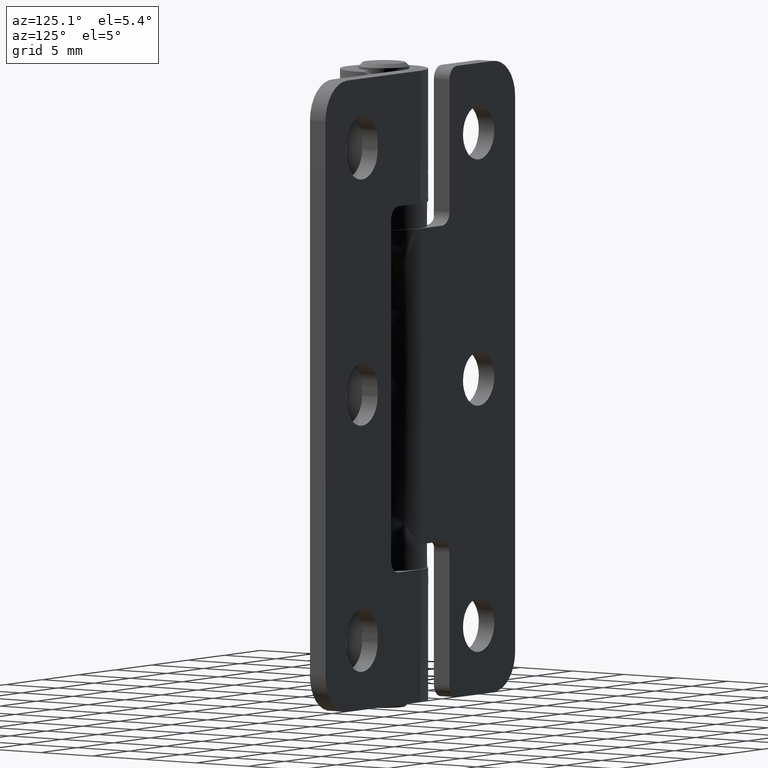
[diagram: clean part render]
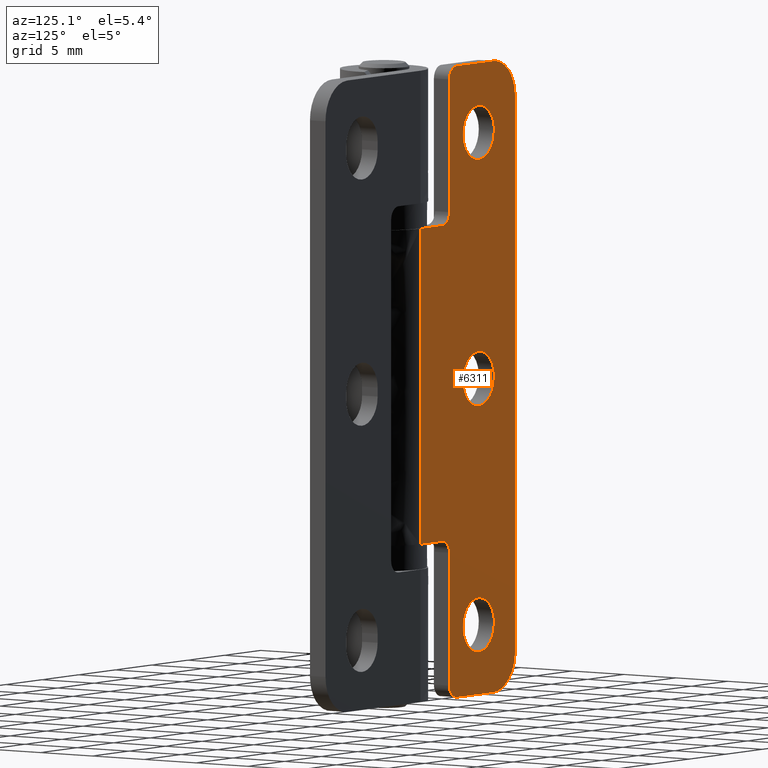
[diagram: same view with one face highlighted and labeled with its STEP entity id]
A machine part, auxiliary view. The second image highlights one B-rep face of the part: STEP entity #6311.
In plain terms, the highlighted face is a freeform B-spline surface patch.
Its self-contained STEP definition (entity closure, byte-faithful):
#5334=CARTESIAN_POINT('',(-6.547480998249361,3.500000000000000,42.914853580625248));
#5335=VERTEX_POINT('',#5334);
#5341=CARTESIAN_POINT('',(-7.999999419834744,3.500000000000000,42.350000000000080));
#5342=VERTEX_POINT('',#5341);
#5343=CARTESIAN_POINT('',(-7.999999419834744,3.500000000000000,42.350000000000080));
#5344=CARTESIAN_POINT('',(-7.767406874589605,3.499999999999999,42.349858491402422));
#5345=CARTESIAN_POINT('',(-7.368795473166668,3.499999999999995,42.415353014166342));
#5346=CARTESIAN_POINT('',(-6.884704316697647,3.500000000000017,42.643541333721167));
#5347=CARTESIAN_POINT('',(-6.645458157641640,3.499999999999964,42.825061790457482));
#5348=CARTESIAN_POINT('',(-6.547480998249361,3.500000000000000,42.914853580625248));
#5349=B_SPLINE_CURVE_WITH_KNOTS('',3,(#5343,#5344,#5345,#5346,#5347,#5348),.UNSPECIFIED.,.F.,.U.,(4,1,1,4),(0.000000014525932,0.697732234627679,1.196102206325336,1.594802945870812),.UNSPECIFIED.);
#5350=EDGE_CURVE('',#5342,#5335,#5349,.T.);
#5352=CARTESIAN_POINT('',(-10.150000000000571,3.500000000000000,44.500000000000000));
#5353=VERTEX_POINT('',#5352);
#5354=CARTESIAN_POINT('',(-10.150000000000571,3.500000000000000,44.500000000000000));
#5355=CARTESIAN_POINT('',(-10.150055773051379,3.499999999999996,44.315302432744282));
#5356=CARTESIAN_POINT('',(-10.114639841352419,3.500000000000006,44.042697401911212));
#5357=CARTESIAN_POINT('',(-9.970931550388389,3.499999999999997,43.607611629665939));
#5358=CARTESIAN_POINT('',(-9.746144331460341,3.500000000000002,43.204979693958997));
#5359=CARTESIAN_POINT('',(-9.395312526345833,3.499999999999997,42.841072481496930));
#5360=CARTESIAN_POINT('',(-8.967647133709340,3.500000000000010,42.559049246590007));
#5361=CARTESIAN_POINT('',(-8.510101202767007,3.499999999999994,42.388988853811000));
#5362=CARTESIAN_POINT('',(-8.158301811948354,3.500000000000002,42.349980596425631));
#5363=CARTESIAN_POINT('',(-7.999999419834744,3.500000000000000,42.350000000000080));
#5364=B_SPLINE_CURVE_WITH_KNOTS('',3,(#5354,#5355,#5356,#5357,#5358,#5359,#5360,#5361,#5362,#5363),.UNSPECIFIED.,.F.,.U.,(4,1,1,1,1,1,1,4),(0.000000070774472,0.554073890345666,0.817923411777211,1.372004260566749,1.926064710605263,2.321846378083893,2.902320829414840,3.377233620180323),.UNSPECIFIED.);
#5365=EDGE_CURVE('',#5353,#5342,#5364,.T.);
#5367=CARTESIAN_POINT('',(-9.452519001751778,3.500000000000000,46.085146419374752));
#5368=VERTEX_POINT('',#5367);
#5369=CARTESIAN_POINT('',(-9.452519001751778,3.500000000000000,46.085146419374752));
#5370=CARTESIAN_POINT('',(-9.555189599746273,3.500000000000000,45.991076605196021));
#5371=CARTESIAN_POINT('',(-9.767135431154935,3.499999999999999,45.755163426746698));
#5372=CARTESIAN_POINT('',(-9.968644591864527,3.500000000000002,45.396314175051501));
#5373=CARTESIAN_POINT('',(-10.113691434103901,3.499999999999995,44.964148594217733));
#5374=CARTESIAN_POINT('',(-10.150050406570310,3.500000000000006,44.685675616116903));
#5375=CARTESIAN_POINT('',(-10.150000000000571,3.500000000000000,44.500000000000000));
#5376=B_SPLINE_CURVE_WITH_KNOTS('',3,(#5369,#5370,#5371,#5372,#5373,#5374,#5375),.UNSPECIFIED.,.F.,.U.,(4,1,1,1,4),(0.000000019762542,0.417756446214311,0.946908171517592,1.225417655837289,1.782430076777035),.UNSPECIFIED.);
#5377=EDGE_CURVE('',#5368,#5353,#5376,.T.);
#5469=CARTESIAN_POINT('',(-8.000000580166384,3.500000000000000,46.649999999999928));
#5470=VERTEX_POINT('',#5469);
#5471=CARTESIAN_POINT('',(-8.000000580166384,3.500000000000000,46.649999999999928));
#5472=CARTESIAN_POINT('',(-8.215980074400923,3.500000000000004,46.650103902749777));
#5473=CARTESIAN_POINT('',(-8.514933657209006,3.499999999999996,46.604556520270293));
#5474=CARTESIAN_POINT('',(-9.013446289337567,3.500000000000008,46.417323831443618));
#5475=CARTESIAN_POINT('',(-9.281120690625532,3.499999999999995,46.242391172162861));
#5476=CARTESIAN_POINT('',(-9.452519001751778,3.500000000000000,46.085146419374752));
#5477=B_SPLINE_CURVE_WITH_KNOTS('',3,(#5471,#5472,#5473,#5474,#5475,#5476),.UNSPECIFIED.,.F.,.U.,(4,1,1,4),(0.000000014525087,0.647894897212068,0.897070725752961,1.594802945870829),.UNSPECIFIED.);
#5478=EDGE_CURVE('',#5470,#5368,#5477,.T.);
#5480=CARTESIAN_POINT('',(-5.850000000000571,3.500000000000000,44.500000000000000));
#5481=VERTEX_POINT('',#5480);
#5482=CARTESIAN_POINT('',(-5.850000000000571,3.500000000000000,44.500000000000000));
#5483=CARTESIAN_POINT('',(-5.849899817111045,3.499999999999998,44.719882875604910));
#5484=CARTESIAN_POINT('',(-5.901723887334307,3.500000000000009,45.054014706894790));
#5485=CARTESIAN_POINT('',(-6.101314111235702,3.499999999999980,45.544350395932071));
#5486=CARTESIAN_POINT('',(-6.367399049817189,3.500000000000039,45.932221539382738));
#5487=CARTESIAN_POINT('',(-6.738654148204640,3.499999999999967,46.260435927731322));
#5488=CARTESIAN_POINT('',(-7.084669576695245,3.500000000000054,46.456433038252612));
#5489=CARTESIAN_POINT('',(-7.498736792254086,3.499999999999963,46.607475845625302));
#5490=CARTESIAN_POINT('',(-7.797710558431114,3.500000000000021,46.650077286735332));
#5491=CARTESIAN_POINT('',(-8.000000580166384,3.500000000000000,46.649999999999928));
#5492=B_SPLINE_CURVE_WITH_KNOTS('',3,(#5482,#5483,#5484,#5485,#5486,#5487,#5488,#5489,#5490,#5491),.UNSPECIFIED.,.F.,.U.,(4,1,1,1,1,1,1,4),(0.000000070783852,0.659610932058368,1.002618282774338,1.583097111869757,2.057993631345186,2.480154645655665,2.770393240017392,3.377233620180324),.UNSPECIFIED.);
#5493=EDGE_CURVE('',#5481,#5470,#5492,.T.);
#5495=CARTESIAN_POINT('',(-6.547480998249361,3.500000000000000,42.914853580625248));
#5496=CARTESIAN_POINT('',(-6.444804024143672,3.500000000000008,43.008919818729588));
#5497=CARTESIAN_POINT('',(-6.251584723894773,3.499999999999997,43.224035567434960));
#5498=CARTESIAN_POINT('',(-6.043587700661606,3.500000000000000,43.578129931921112));
#5499=CARTESIAN_POINT('',(-5.889941685395240,3.499999999999984,44.008008572158559));
#5500=CARTESIAN_POINT('',(-5.849949874347880,3.500000000000029,44.314324369106700));
#5501=CARTESIAN_POINT('',(-5.850000000000571,3.500000000000000,44.500000000000000));
#5502=B_SPLINE_CURVE_WITH_KNOTS('',3,(#5495,#5496,#5497,#5498,#5499,#5500,#5501),.UNSPECIFIED.,.F.,.U.,(4,1,1,1,4),(0.000000019763336,0.417756446215442,0.863375057571481,1.225417655837923,1.782430076777035),.UNSPECIFIED.);
#5503=EDGE_CURVE('',#5335,#5481,#5502,.T.);
#5540=CARTESIAN_POINT('',(-6.547480998249362,3.500000000000000,23.414853580625248));
#5541=VERTEX_POINT('',#5540);
#5547=CARTESIAN_POINT('',(-7.999999419834742,3.500000000000000,22.850000000000080));
#5548=VERTEX_POINT('',#5547);
#5549=CARTESIAN_POINT('',(-7.999999419834742,3.500000000000000,22.850000000000080));
#5550=CARTESIAN_POINT('',(-7.742469771562931,3.499999999999994,22.849794988333930));
#5551=CARTESIAN_POINT('',(-7.343928399721301,3.500000000000007,22.922509281626532));
#5552=CARTESIAN_POINT('',(-6.864774604148334,3.499999999999994,23.158692799224919));
#5553=CARTESIAN_POINT('',(-6.645456575226999,3.500000000000003,23.325058084963239));
#5554=CARTESIAN_POINT('',(-6.547480998249362,3.500000000000000,23.414853580625248));
#5555=B_SPLINE_CURVE_WITH_KNOTS('',3,(#5549,#5550,#5551,#5552,#5553,#5554),.UNSPECIFIED.,.F.,.U.,(4,1,1,4),(0.000000014528783,0.772492419500053,1.196102206326229,1.594802945870783),.UNSPECIFIED.);
#5556=EDGE_CURVE('',#5548,#5541,#5555,.T.);
#5558=CARTESIAN_POINT('',(-10.150000000000571,3.500000000000000,25.0));
#5559=VERTEX_POINT('',#5558);
#5560=CARTESIAN_POINT('',(-10.150000000000571,3.500000000000000,25.0));
#5561=CARTESIAN_POINT('',(-10.150163172663150,3.500000000000005,24.753718408659012));
#5562=CARTESIAN_POINT('',(-10.084292570237990,3.499999999999984,24.375669300739538));
#5563=CARTESIAN_POINT('',(-9.853153662882130,3.500000000000020,23.879219588235252));
#5564=CARTESIAN_POINT('',(-9.565999482199043,3.499999999999983,23.496895918445901));
#5565=CARTESIAN_POINT('',(-9.216644591582467,3.500000000000010,23.210222167733889));
#5566=CARTESIAN_POINT('',(-8.843317442114715,3.500000000000004,23.010691791279559));
#5567=CARTESIAN_POINT('',(-8.457315476653829,3.499999999999978,22.883180254928270));
#5568=CARTESIAN_POINT('',(-8.158305914930233,3.500000000000008,22.849969897950970));
#5569=CARTESIAN_POINT('',(-7.999999419834742,3.500000000000000,22.850000000000080));
#5570=B_SPLINE_CURVE_WITH_KNOTS('',3,(#5560,#5561,#5562,#5563,#5564,#5565,#5566,#5567,#5568,#5569),.UNSPECIFIED.,.F.,.U.,(4,1,1,1,1,1,1,4),(0.000000070776671,0.738768618320917,1.134545766522398,1.635860561849311,2.163529635118663,2.480154645655291,2.902320829414719,3.377233620180324),.UNSPECIFIED.);
#5571=EDGE_CURVE('',#5559,#5548,#5570,.T.);
#5573=CARTESIAN_POINT('',(-9.452519001751776,3.500000000000000,26.585146419374759));
#5574=VERTEX_POINT('',#5573);
#5575=CARTESIAN_POINT('',(-9.452519001751776,3.500000000000000,26.585146419374759));
#5576=CARTESIAN_POINT('',(-9.616858962577680,3.499999999999996,26.434688819021460));
#5577=CARTESIAN_POINT('',(-9.892226136823799,3.500000000000007,26.089443115605871));
#5578=CARTESIAN_POINT('',(-10.109016289057390,3.500000000000004,25.529171565920560));
#5579=CARTESIAN_POINT('',(-10.150008268892631,3.499999999999989,25.157814797103189));
#5580=CARTESIAN_POINT('',(-10.150000000000571,3.500000000000000,25.0));
#5581=B_SPLINE_CURVE_WITH_KNOTS('',3,(#5575,#5576,#5577,#5578,#5579,#5580),.UNSPECIFIED.,.F.,.U.,(4,1,1,4),(0.000000019760663,0.668411610178747,1.308971474721767,1.782430076777045),.UNSPECIFIED.);
#5582=EDGE_CURVE('',#5574,#5559,#5581,.T.);
#5671=CARTESIAN_POINT('',(-8.000000580166386,3.500000000000000,27.149999999999920));
#5672=VERTEX_POINT('',#5671);
#5673=CARTESIAN_POINT('',(-8.000000580166386,3.500000000000000,27.149999999999920));
#5674=CARTESIAN_POINT('',(-8.174436558032021,3.499999999999997,27.150042933584189));
#5675=CARTESIAN_POINT('',(-8.456818083260128,3.500000000000001,27.115424625097258));
#5676=CARTESIAN_POINT('',(-8.963109978610090,3.499999999999997,26.948414114682869));
#5677=CARTESIAN_POINT('',(-9.268901415337247,3.500000000000003,26.753655446583160));
#5678=CARTESIAN_POINT('',(-9.452519001751776,3.500000000000000,26.585146419374759));
#5679=B_SPLINE_CURVE_WITH_KNOTS('',3,(#5673,#5674,#5675,#5676,#5677,#5678),.UNSPECIFIED.,.F.,.U.,(4,1,1,4),(0.000000014528775,0.523296669760107,0.847235019439931,1.594802945870792),.UNSPECIFIED.);
#5680=EDGE_CURVE('',#5672,#5574,#5679,.T.);
#5682=CARTESIAN_POINT('',(-5.850000000000571,3.500000000000000,25.0));
#5683=VERTEX_POINT('',#5682);
#5684=CARTESIAN_POINT('',(-5.850000000000571,3.500000000000000,25.0));
#5685=CARTESIAN_POINT('',(-5.849878164977052,3.499999999999990,25.219886248891410));
#5686=CARTESIAN_POINT('',(-5.905831931472353,3.500000000000028,25.580395812298811));
#5687=CARTESIAN_POINT('',(-6.104306215864047,3.499999999999957,26.043384481319471));
#5688=CARTESIAN_POINT('',(-6.354276569741900,3.500000000000024,26.407742009679549));
#5689=CARTESIAN_POINT('',(-6.668292567231429,3.500000000000008,26.706717126844008));
#5690=CARTESIAN_POINT('',(-6.990408322539293,3.499999999999988,26.907892411295080));
#5691=CARTESIAN_POINT('',(-7.419632405018526,3.500000000000016,27.091954553754121));
#5692=CARTESIAN_POINT('',(-7.753715595880802,3.499999999999995,27.150176888617050));
#5693=CARTESIAN_POINT('',(-8.000000580166386,3.500000000000000,27.149999999999920));
#5694=B_SPLINE_CURVE_WITH_KNOTS('',3,(#5684,#5685,#5686,#5687,#5688,#5689,#5690,#5691,#5692,#5693),.UNSPECIFIED.,.F.,.U.,(4,1,1,1,1,1,1,4),(0.000000070776481,0.659610932053901,1.081776822057209,1.503932842506968,1.978832330916146,2.374616182115610,2.638465729889269,3.377233620180317),.UNSPECIFIED.);
#5695=EDGE_CURVE('',#5683,#5672,#5694,.T.);
#5697=CARTESIAN_POINT('',(-6.547480998249362,3.500000000000000,23.414853580625248));
#5698=CARTESIAN_POINT('',(-6.417401554097920,3.499999999999999,23.533988406297521));
#5699=CARTESIAN_POINT('',(-6.235408780991116,3.500000000000014,23.747578207766178));
#5700=CARTESIAN_POINT('',(-6.030342358038158,3.499999999999986,24.112760756023981));
#5701=CARTESIAN_POINT('',(-5.889059082354995,3.500000000000013,24.507995985912920));
#5702=CARTESIAN_POINT('',(-5.849961253751760,3.499999999999995,24.823612073821881));
#5703=CARTESIAN_POINT('',(-5.850000000000571,3.500000000000000,25.0));
#5704=B_SPLINE_CURVE_WITH_KNOTS('',3,(#5697,#5698,#5699,#5700,#5701,#5702,#5703),.UNSPECIFIED.,.F.,.U.,(4,1,1,1,4),(0.000000019761450,0.529159849008198,0.835521925039079,1.253270247538596,1.782430076777043),.UNSPECIFIED.);
#5705=EDGE_CURVE('',#5541,#5683,#5704,.T.);
#5742=CARTESIAN_POINT('',(-6.547480998249363,3.500000000000000,3.914853580625245));
#5743=VERTEX_POINT('',#5742);
#5749=CARTESIAN_POINT('',(-7.999999419834744,3.500000000000000,3.350000000000078));
#5750=VERTEX_POINT('',#5749);
#5751=CARTESIAN_POINT('',(-7.999999419834744,3.500000000000000,3.350000000000078));
#5752=CARTESIAN_POINT('',(-7.767405801811472,3.500000000000001,3.349856405823140));
#5753=CARTESIAN_POINT('',(-7.368797903655705,3.500000000000000,3.415356422836027));
#5754=CARTESIAN_POINT('',(-6.884701895124139,3.500000000000007,3.643538546464983));
#5755=CARTESIAN_POINT('',(-6.645459895533636,3.499999999999997,3.825063909944808));
#5756=CARTESIAN_POINT('',(-6.547480998249363,3.500000000000000,3.914853580625245));
#5757=B_SPLINE_CURVE_WITH_KNOTS('',3,(#5751,#5752,#5753,#5754,#5755,#5756),.UNSPECIFIED.,.F.,.U.,(4,1,1,4),(0.000000014528582,0.697732234629219,1.196102206326066,1.594802945870797),.UNSPECIFIED.);
#5758=EDGE_CURVE('',#5750,#5743,#5757,.T.);
#5760=CARTESIAN_POINT('',(-10.150000000000571,3.500000000000000,5.500000000000000));
#5761=VERTEX_POINT('',#5760);
#5762=CARTESIAN_POINT('',(-10.150000000000571,3.500000000000000,5.500000000000000));
#5763=CARTESIAN_POINT('',(-10.150122740880700,3.500000000000009,5.280113326667192));
#5764=CARTESIAN_POINT('',(-10.098259116887700,3.499999999999974,4.945985794796542));
#5765=CARTESIAN_POINT('',(-9.931917892654710,3.500000000000031,4.537397284783019));
#5766=CARTESIAN_POINT('',(-9.746034599420414,3.499999999999973,4.227280039531732));
#5767=CARTESIAN_POINT('',(-9.445945900166857,3.500000000000028,3.879233352495061));
#5768=CARTESIAN_POINT('',(-9.009818230360873,3.499999999999965,3.572085016018427));
#5769=CARTESIAN_POINT('',(-8.492500249905909,3.500000000000009,3.387061926533727));
#5770=CARTESIAN_POINT('',(-8.158303117481735,3.500000000000000,3.349977824087245));
#5771=CARTESIAN_POINT('',(-7.999999419834744,3.500000000000000,3.350000000000078));
#5772=B_SPLINE_CURVE_WITH_KNOTS('',3,(#5762,#5763,#5764,#5765,#5766,#5767,#5768,#5769,#5770,#5771),.UNSPECIFIED.,.F.,.U.,(4,1,1,1,1,1,1,4),(0.000000070777725,0.659610932054401,1.002618282771280,1.319240935369276,1.741373263093526,2.374616182115464,2.902320829414694,3.377233620180324),.UNSPECIFIED.);
#5773=EDGE_CURVE('',#5761,#5750,#5772,.T.);
#5775=CARTESIAN_POINT('',(-9.452519001751776,3.500000000000000,7.085146419374754));
#5776=VERTEX_POINT('',#5775);
#5777=CARTESIAN_POINT('',(-9.452519001751776,3.500000000000000,7.085146419374754));
#5778=CARTESIAN_POINT('',(-9.555195953345702,3.499999999999999,6.991079914440554));
#5779=CARTESIAN_POINT('',(-9.748415698389572,3.500000000000000,6.775964720753160));
#5780=CARTESIAN_POINT('',(-9.961142413181518,3.500000000000001,6.413822109437493));
#5781=CARTESIAN_POINT('',(-10.112081959048281,3.499999999999999,5.982716244166518));
#5782=CARTESIAN_POINT('',(-10.150041617115299,3.500000000000000,5.676389123891688));
#5783=CARTESIAN_POINT('',(-10.150000000000571,3.500000000000000,5.500000000000000));
#5784=B_SPLINE_CURVE_WITH_KNOTS('',3,(#5777,#5778,#5779,#5780,#5781,#5782,#5783),.UNSPECIFIED.,.F.,.U.,(4,1,1,1,4),(0.000000019762045,0.417756446214438,0.863375057570781,1.253270247538770,1.782430076777044),.UNSPECIFIED.);
#5785=EDGE_CURVE('',#5776,#5761,#5784,.T.);
#5878=CARTESIAN_POINT('',(-8.000000580166384,3.500000000000000,7.649999999999922));
#5879=VERTEX_POINT('',#5878);
#5880=CARTESIAN_POINT('',(-8.000000580166384,3.500000000000000,7.649999999999922));
#5881=CARTESIAN_POINT('',(-8.191052706865564,3.500000000000001,7.650061908373830));
#5882=CARTESIAN_POINT('',(-8.473420379033783,3.499999999999999,7.612093737655227));
#5883=CARTESIAN_POINT('',(-8.977331753412285,3.500000000000004,7.439347692843419));
#5884=CARTESIAN_POINT('',(-9.268904944501969,3.500000000000001,7.253663543255938));
#5885=CARTESIAN_POINT('',(-9.452519001751776,3.500000000000000,7.085146419374754));
#5886=B_SPLINE_CURVE_WITH_KNOTS('',3,(#5880,#5881,#5882,#5883,#5884,#5885),.UNSPECIFIED.,.F.,.U.,(4,1,1,4),(0.000000014529168,0.573133477488452,0.847235019439962,1.594802945870800),.UNSPECIFIED.);
#5887=EDGE_CURVE('',#5879,#5776,#5886,.T.);
#5889=CARTESIAN_POINT('',(-5.850000000000571,3.500000000000000,5.500000000000000));
#5890=VERTEX_POINT('',#5889);
#5891=CARTESIAN_POINT('',(-5.850000000000571,3.500000000000000,5.500000000000000));
#5892=CARTESIAN_POINT('',(-5.849976393445707,3.500000000000000,5.658304127107711));
#5893=CARTESIAN_POINT('',(-5.887066735435653,3.500000000000001,5.992501303563466));
#5894=CARTESIAN_POINT('',(-6.063138034316951,3.500000000000002,6.484777535095018));
#5895=CARTESIAN_POINT('',(-6.336642899407099,3.499999999999999,6.888619805778522));
#5896=CARTESIAN_POINT('',(-6.694658053921465,3.499999999999993,7.229498785538777));
#5897=CARTESIAN_POINT('',(-7.073556423336718,3.500000000000021,7.459787149690927));
#5898=CARTESIAN_POINT('',(-7.533891843765304,3.499999999999982,7.614950944242197));
#5899=CARTESIAN_POINT('',(-7.832896965167187,3.500000000000006,7.650036989963380));
#5900=CARTESIAN_POINT('',(-8.000000580166384,3.500000000000000,7.649999999999922));
#5901=B_SPLINE_CURVE_WITH_KNOTS('',3,(#5891,#5892,#5893,#5894,#5895,#5896,#5897,#5898,#5899,#5900),.UNSPECIFIED.,.F.,.U.,(4,1,1,1,1,1,1,4),(0.000000070778260,0.474913562718980,1.002618282771818,1.556696890506051,1.926064710605257,2.480154645655373,2.875927959682360,3.377233620180315),.UNSPECIFIED.);
#5902=EDGE_CURVE('',#5890,#5879,#5901,.T.);
#5904=CARTESIAN_POINT('',(-6.547480998249363,3.500000000000000,3.914853580625245));
#5905=CARTESIAN_POINT('',(-6.431103223579235,3.499999999999995,4.021453834527311));
#5906=CARTESIAN_POINT('',(-6.246616130621813,3.500000000000006,4.232338889157146));
#5907=CARTESIAN_POINT('',(-6.017924113251174,3.500000000000006,4.627437756539163));
#5908=CARTESIAN_POINT('',(-5.880739362472669,3.499999999999974,5.045109006029642));
#5909=CARTESIAN_POINT('',(-5.849990238218298,3.500000000000003,5.360750310276786));
#5910=CARTESIAN_POINT('',(-5.850000000000571,3.500000000000000,5.500000000000000));
#5911=B_SPLINE_CURVE_WITH_KNOTS('',3,(#5904,#5905,#5906,#5907,#5908,#5909,#5910),.UNSPECIFIED.,.F.,.U.,(4,1,1,1,4),(0.000000019762155,0.473458621829604,0.835521925039476,1.364673650336968,1.782430076777043),.UNSPECIFIED.);
#5912=EDGE_CURVE('',#5743,#5890,#5911,.T.);
#5949=CARTESIAN_POINT('',(-10.000000000000901,3.500000000000000,50.0));
#5950=VERTEX_POINT('',#5949);
#5956=CARTESIAN_POINT('',(-13.000000000000901,3.500000000000000,47.0));
#5957=VERTEX_POINT('',#5956);
#5958=CARTESIAN_POINT('',(-13.000000000000901,3.500000000000000,47.0));
#5959=CARTESIAN_POINT('',(-13.000053057889160,3.500000000000000,47.233171220139930));
#5960=CARTESIAN_POINT('',(-12.956841636093660,3.499999999999992,47.601292464829633));
#5961=CARTESIAN_POINT('',(-12.789292555269499,3.500000000000009,48.141717952093501));
#5962=CARTESIAN_POINT('',(-12.523213551858010,3.499999999999979,48.670431856709463));
#5963=CARTESIAN_POINT('',(-12.064551848755340,3.500000000000006,49.222452052289754));
#5964=CARTESIAN_POINT('',(-11.460149436273140,3.500000000000001,49.653642718872838));
#5965=CARTESIAN_POINT('',(-10.760814600349359,3.499999999999999,49.933269882763042));
#5966=CARTESIAN_POINT('',(-10.269986947745609,3.500000000000003,50.000093254589210));
#5967=CARTESIAN_POINT('',(-10.000000000000901,3.500000000000000,50.0));
#5968=B_SPLINE_CURVE_WITH_KNOTS('',3,(#5958,#5959,#5960,#5961,#5962,#5963,#5964,#5965,#5966,#5967),.UNSPECIFIED.,.F.,.U.,(4,1,1,1,1,1,1,4),(0.000000061317203,0.699496928418573,1.104471935280814,1.693535808903140,2.466648614322544,3.239781740818849,3.902476469771275,4.712418548628338),.UNSPECIFIED.);
#5969=EDGE_CURVE('',#5957,#5950,#5968,.T.);
#6010=CARTESIAN_POINT('',(-13.000000000000901,3.500000000000000,3.0));
#6011=VERTEX_POINT('',#6010);
#6017=CARTESIAN_POINT('',(-10.000000000000901,3.500000000000000,-2.775558E-014));
#6018=VERTEX_POINT('',#6017);
#6019=CARTESIAN_POINT('',(-10.000000000000901,3.500000000000000,-2.775558E-014));
#6020=CARTESIAN_POINT('',(-10.331365093536940,3.500000000000000,-0.000193728590221));
#6021=CARTESIAN_POINT('',(-10.871189043190640,3.500000000000006,0.090386118247958));
#6022=CARTESIAN_POINT('',(-11.508781877466530,3.499999999999997,0.387273361317720));
#6023=CARTESIAN_POINT('',(-12.009887953165800,3.500000000000001,0.744768857293807));
#6024=CARTESIAN_POINT('',(-12.396990631259250,3.499999999999999,1.161455437609594));
#6025=CARTESIAN_POINT('',(-12.684650442419080,3.500000000000001,1.634918973561186));
#6026=CARTESIAN_POINT('',(-12.924893713352359,3.499999999999999,2.214693041105808));
#6027=CARTESIAN_POINT('',(-13.000174661896891,3.500000000000003,2.680905668169936));
#6028=CARTESIAN_POINT('',(-13.000000000000901,3.500000000000000,3.0));
#6029=B_SPLINE_CURVE_WITH_KNOTS('',3,(#6019,#6020,#6021,#6022,#6023,#6024,#6025,#6026,#6027,#6028),.UNSPECIFIED.,.F.,.U.,(4,1,1,1,1,1,1,4),(0.000000061326519,0.994022550478943,1.619895942295739,2.098503310901665,2.834811705172587,3.313417922390799,3.755209932662635,4.712418548628374),.UNSPECIFIED.);
#6030=EDGE_CURVE('',#6018,#6011,#6029,.T.);
#6053=CARTESIAN_POINT('',(-5.000000000000400,3.500000000000000,-2.775558E-014));
#6054=VERTEX_POINT('',#6053);
#6055=CARTESIAN_POINT('',(-10.000000000000901,3.500000000000000,-2.775558E-014));
#6056=CARTESIAN_POINT('',(-5.000000000000400,3.500000000000000,-2.775558E-014));
#6057=QUASI_UNIFORM_CURVE('',1,(#6055,#6056),.UNSPECIFIED.,.F.,.U.);
#6058=EDGE_CURVE('',#6018,#6054,#6057,.T.);
#6073=CARTESIAN_POINT('',(-5.000000000000400,3.500000000000000,50.0));
#6074=VERTEX_POINT('',#6073);
#6075=CARTESIAN_POINT('',(-10.000000000000901,3.500000000000000,50.0));
#6076=CARTESIAN_POINT('',(-5.000000000000400,3.500000000000000,50.0));
#6077=QUASI_UNIFORM_CURVE('',1,(#6075,#6076),.UNSPECIFIED.,.F.,.U.);
#6078=EDGE_CURVE('',#5950,#6074,#6077,.T.);
#6101=CARTESIAN_POINT('',(-13.000000000000901,3.500000000000000,47.0));
#6102=CARTESIAN_POINT('',(-13.000000000000901,3.500000000000000,3.0));
#6103=QUASI_UNIFORM_CURVE('',1,(#6101,#6102),.UNSPECIFIED.,.F.,.U.);
#6104=EDGE_CURVE('',#5957,#6011,#6103,.T.);
#6186=CARTESIAN_POINT('',(-13.649349974804419,3.500000000000000,-2.497499903090326));
#6187=CARTESIAN_POINT('',(-13.649349974804419,3.500000000000000,52.497501244194808));
#6188=CARTESIAN_POINT('',(0.649350323490693,3.500000000000000,-2.497499903090326));
#6189=CARTESIAN_POINT('',(0.649350323490693,3.500000000000000,52.497501244194808));
#6190=B_SPLINE_SURFACE_WITH_KNOTS('',1,1,((#6186,#6188),(#6187,#6189)),.UNSPECIFIED.,.F.,.F.,.U.,(2,2),(2,2),(0.0,54.995001147285137),(0.0,14.298700298295120),.UNSPECIFIED.);
#6191=ORIENTED_EDGE('',*,*,#6058,.F.);
#6192=ORIENTED_EDGE('',*,*,#6030,.T.);
#6193=ORIENTED_EDGE('',*,*,#6104,.F.);
#6194=ORIENTED_EDGE('',*,*,#5969,.T.);
#6195=ORIENTED_EDGE('',*,*,#6078,.T.);
#6196=CARTESIAN_POINT('',(-4.000000000000570,3.500000000000000,49.0));
#6197=VERTEX_POINT('',#6196);
#6198=CARTESIAN_POINT('',(-5.000000000000400,3.500000000000000,50.0));
#6199=CARTESIAN_POINT('',(-4.869079872985142,3.500000000000006,50.000133644355103));
#6200=CARTESIAN_POINT('',(-4.648290594654268,3.499999999999979,49.955987622252202));
#6201=CARTESIAN_POINT('',(-4.391519730972584,3.500000000000021,49.806289013476047));
#6202=CARTESIAN_POINT('',(-4.232466396009455,3.499999999999995,49.651067902734233));
#6203=CARTESIAN_POINT('',(-4.120976953644091,3.500000000000001,49.488561973413127));
#6204=CARTESIAN_POINT('',(-4.027676532628530,3.499999999999993,49.278128513842788));
#6205=CARTESIAN_POINT('',(-3.999942501971759,3.500000000000018,49.106362479591098));
#6206=CARTESIAN_POINT('',(-4.000000000000570,3.500000000000000,49.0));
#6207=B_SPLINE_CURVE_WITH_KNOTS('',3,(#6198,#6199,#6200,#6201,#6202,#6203,#6204,#6205,#6206),.UNSPECIFIED.,.F.,.U.,(4,1,1,1,1,1,4),(0.000000086235385,0.392709824482885,0.662707421063366,0.883581139894388,1.055404755143724,1.251764098297433,1.570835744339694),.UNSPECIFIED.);
#6208=EDGE_CURVE('',#6074,#6197,#6207,.T.);
#6209=ORIENTED_EDGE('',*,*,#6208,.T.);
#6210=CARTESIAN_POINT('',(-4.000000000000570,3.500000000000000,38.500000000000000));
#6211=VERTEX_POINT('',#6210);
#6212=CARTESIAN_POINT('',(-4.000000000000570,3.500000000000000,38.500000000000000));
#6213=CARTESIAN_POINT('',(-4.000000000000570,3.500000000000000,49.0));
#6214=QUASI_UNIFORM_CURVE('',1,(#6212,#6213),.UNSPECIFIED.,.F.,.U.);
#6215=EDGE_CURVE('',#6211,#6197,#6214,.T.);
#6216=ORIENTED_EDGE('',*,*,#6215,.F.);
#6217=CARTESIAN_POINT('',(-3.000000000000400,3.500000000000000,37.500000000000000));
#6218=VERTEX_POINT('',#6217);
#6219=CARTESIAN_POINT('',(-4.000000000000570,3.500000000000000,38.500000000000000));
#6220=CARTESIAN_POINT('',(-4.000151972955409,3.500000000000005,38.369071098628773));
#6221=CARTESIAN_POINT('',(-3.959233144547746,3.499999999999993,38.164663495683683));
#6222=CARTESIAN_POINT('',(-3.828224092871669,3.500000000000005,37.926706962799159));
#6223=CARTESIAN_POINT('',(-3.672526837653272,3.499999999999993,37.746163833291767));
#6224=CARTESIAN_POINT('',(-3.483214853180928,3.500000000000015,37.612824849353913));
#6225=CARTESIAN_POINT('',(-3.245420990052023,3.499999999999989,37.521137276862831));
#6226=CARTESIAN_POINT('',(-3.089996631138535,3.500000000000012,37.499967561841700));
#6227=CARTESIAN_POINT('',(-3.000000000000400,3.500000000000000,37.500000000000000));
#6228=B_SPLINE_CURVE_WITH_KNOTS('',3,(#6219,#6220,#6221,#6222,#6223,#6224,#6225,#6226,#6227),.UNSPECIFIED.,.F.,.U.,(4,1,1,1,1,1,4),(0.000000086239198,0.392709824485399,0.613611733076017,0.809950632530752,1.104489609269556,1.300848952463831,1.570835744340109),.UNSPECIFIED.);
#6229=EDGE_CURVE('',#6211,#6218,#6228,.T.);
#6230=ORIENTED_EDGE('',*,*,#6229,.T.);
#6231=CARTESIAN_POINT('',(0.0,3.500000000000000,37.500000000000000));
#6232=VERTEX_POINT('',#6231);
#6233=CARTESIAN_POINT('',(0.0,3.500000000000000,37.500000000000000));
#6234=CARTESIAN_POINT('',(-3.000000000000400,3.500000000000000,37.500000000000000));
#6235=QUASI_UNIFORM_CURVE('',1,(#6233,#6234),.UNSPECIFIED.,.F.,.U.);
#6236=EDGE_CURVE('',#6232,#6218,#6235,.T.);
#6237=ORIENTED_EDGE('',*,*,#6236,.F.);
#6238=CARTESIAN_POINT('',(0.0,3.500000000000000,12.500000000000000));
#6239=VERTEX_POINT('',#6238);
#6240=CARTESIAN_POINT('',(0.0,3.500000000000000,37.500000000000000));
#6241=CARTESIAN_POINT('',(0.0,3.500000000000000,12.500000000000000));
#6242=QUASI_UNIFORM_CURVE('',1,(#6240,#6241),.UNSPECIFIED.,.F.,.U.);
#6243=EDGE_CURVE('',#6232,#6239,#6242,.T.);
#6244=ORIENTED_EDGE('',*,*,#6243,.T.);
#6245=CARTESIAN_POINT('',(-3.000000000000400,3.500000000000000,12.500000000000000));
#6246=VERTEX_POINT('',#6245);
#6247=CARTESIAN_POINT('',(-3.000000000000400,3.500000000000000,12.500000000000000));
#6248=CARTESIAN_POINT('',(0.0,3.500000000000000,12.500000000000000));
#6249=QUASI_UNIFORM_CURVE('',1,(#6247,#6248),.UNSPECIFIED.,.F.,.U.);
#6250=EDGE_CURVE('',#6246,#6239,#6249,.T.);
#6251=ORIENTED_EDGE('',*,*,#6250,.F.);
#6252=CARTESIAN_POINT('',(-4.000000000000570,3.500000000000000,11.500000000000000));
#6253=VERTEX_POINT('',#6252);
#6254=CARTESIAN_POINT('',(-3.000000000000400,3.500000000000000,12.500000000000000));
#6255=CARTESIAN_POINT('',(-3.130930583775378,3.499999999999991,12.500154325454220));
#6256=CARTESIAN_POINT('',(-3.318981656641669,3.499999999999974,12.462501731438939));
#6257=CARTESIAN_POINT('',(-3.544926734782908,3.499999999999968,12.345229761031399));
#6258=CARTESIAN_POINT('',(-3.719945583853344,3.499999999999963,12.208705357167180));
#6259=CARTESIAN_POINT('',(-3.862389338701138,3.499999999999965,12.026150053562249));
#6260=CARTESIAN_POINT('',(-3.972320495545077,3.499999999999985,11.778125704805740));
#6261=CARTESIAN_POINT('',(-4.000057306984283,3.499999999999983,11.606362814497389));
#6262=CARTESIAN_POINT('',(-4.000000000000570,3.500000000000000,11.500000000000000));
#6263=B_SPLINE_CURVE_WITH_KNOTS('',3,(#6254,#6255,#6256,#6257,#6258,#6259,#6260,#6261,#6262),.UNSPECIFIED.,.F.,.U.,(4,1,1,1,1,1,4),(0.000000086238958,0.392709824485087,0.564528945499616,0.760883331499698,1.055404755144480,1.251764098297957,1.570835744340149),.UNSPECIFIED.);
#6264=EDGE_CURVE('',#6246,#6253,#6263,.T.);
#6265=ORIENTED_EDGE('',*,*,#6264,.T.);
#6266=CARTESIAN_POINT('',(-4.000000000000570,3.500000000000000,0.999999999999971));
#6267=VERTEX_POINT('',#6266);
#6268=CARTESIAN_POINT('',(-4.000000000000570,3.500000000000000,0.999999999999971));
#6269=CARTESIAN_POINT('',(-4.000000000000570,3.500000000000000,11.500000000000000));
#6270=QUASI_UNIFORM_CURVE('',1,(#6268,#6269),.UNSPECIFIED.,.F.,.U.);
#6271=EDGE_CURVE('',#6267,#6253,#6270,.T.);
#6272=ORIENTED_EDGE('',*,*,#6271,.F.);
#6273=CARTESIAN_POINT('',(-4.000000000000570,3.500000000000000,0.999999999999971));
#6274=CARTESIAN_POINT('',(-3.999848097826606,3.499999999999994,0.869071597222488));
#6275=CARTESIAN_POINT('',(-4.040766830456576,3.500000000000009,0.664663253447530));
#6276=CARTESIAN_POINT('',(-4.171774679390117,3.499999999999994,0.426705031233436));
#6277=CARTESIAN_POINT('',(-4.311377181091028,3.499999999999999,0.264858149940851));
#6278=CARTESIAN_POINT('',(-4.468594665755169,3.499999999999998,0.145245005082944));
#6279=CARTESIAN_POINT('',(-4.697359805015998,3.500000000000003,0.033565165407596));
#6280=CARTESIAN_POINT('',(-4.877261501402189,3.500000000000003,-0.000111524672826));
#6281=CARTESIAN_POINT('',(-5.000000000000400,3.500000000000000,-2.775558E-014));
#6282=B_SPLINE_CURVE_WITH_KNOTS('',3,(#6273,#6274,#6275,#6276,#6277,#6278,#6279,#6280,#6281),.UNSPECIFIED.,.F.,.U.,(4,1,1,1,1,1,4),(0.000000086238727,0.392709824484834,0.613611733075183,0.809950632529738,1.030856095005251,1.202671866425809,1.570835744339732),.UNSPECIFIED.);
#6283=EDGE_CURVE('',#6267,#6054,#6282,.T.);
#6284=ORIENTED_EDGE('',*,*,#6283,.T.);
#6285=EDGE_LOOP('',(#6191,#6192,#6193,#6194,#6195,#6209,#6216,#6230,#6237,#6244,#6251,#6265,#6272,#6284));
#6286=FACE_OUTER_BOUND('',#6285,.T.);
#6287=ORIENTED_EDGE('',*,*,#5695,.T.);
#6288=ORIENTED_EDGE('',*,*,#5680,.T.);
#6289=ORIENTED_EDGE('',*,*,#5582,.T.);
#6290=ORIENTED_EDGE('',*,*,#5571,.T.);
#6291=ORIENTED_EDGE('',*,*,#5556,.T.);
#6292=ORIENTED_EDGE('',*,*,#5705,.T.);
#6293=EDGE_LOOP('',(#6287,#6288,#6289,#6290,#6291,#6292));
#6294=FACE_BOUND('',#6293,.T.);
#6295=ORIENTED_EDGE('',*,*,#5902,.T.);
#6296=ORIENTED_EDGE('',*,*,#5887,.T.);
#6297=ORIENTED_EDGE('',*,*,#5785,.T.);
#6298=ORIENTED_EDGE('',*,*,#5773,.T.);
#6299=ORIENTED_EDGE('',*,*,#5758,.T.);
#6300=ORIENTED_EDGE('',*,*,#5912,.T.);
#6301=EDGE_LOOP('',(#6295,#6296,#6297,#6298,#6299,#6300));
#6302=FACE_BOUND('',#6301,.T.);
#6303=ORIENTED_EDGE('',*,*,#5493,.T.);
#6304=ORIENTED_EDGE('',*,*,#5478,.T.);
#6305=ORIENTED_EDGE('',*,*,#5377,.T.);
#6306=ORIENTED_EDGE('',*,*,#5365,.T.);
#6307=ORIENTED_EDGE('',*,*,#5350,.T.);
#6308=ORIENTED_EDGE('',*,*,#5503,.T.);
#6309=EDGE_LOOP('',(#6303,#6304,#6305,#6306,#6307,#6308));
#6310=FACE_BOUND('',#6309,.T.);
#6311=ADVANCED_FACE('',(#6286,#6294,#6302,#6310),#6190,.T.);